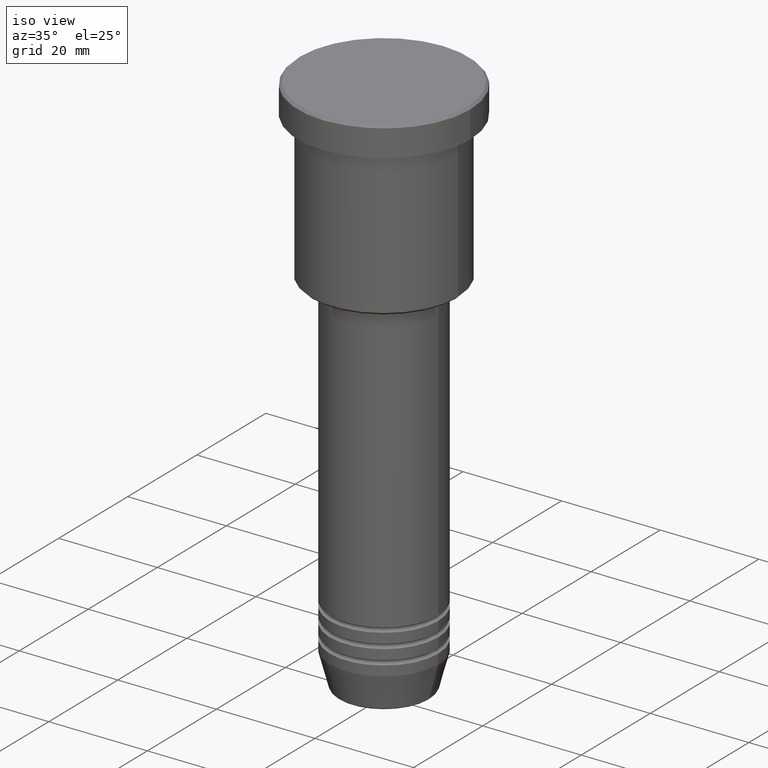
[diagram: clean part render]
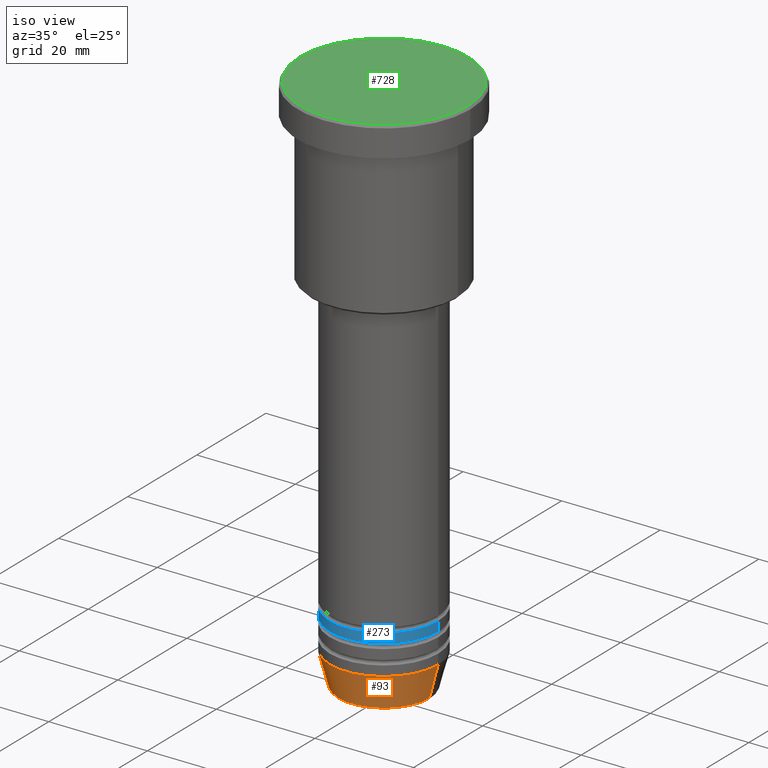
[diagram: same view with three faces highlighted in distinct colors, each labeled with its STEP entity id]
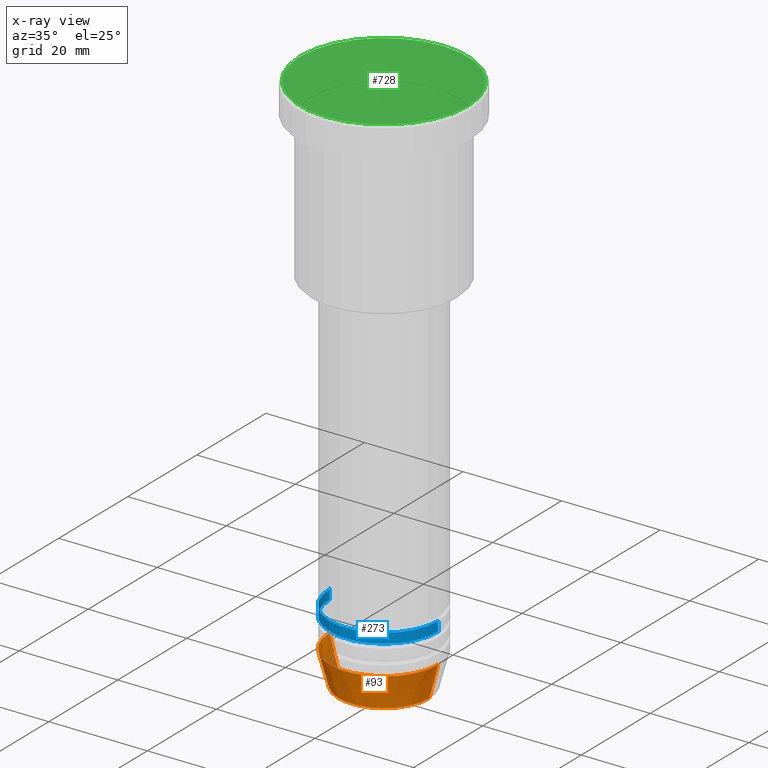
[diagram: x-ray of the same camera — body ghosted, the three highlighted faces saturated]
A machine part, iso view with three faces highlighted in distinct colors.
The next image is the same camera in x-ray (body ghosted, the three faces saturated) — at least one of them is partly hidden behind the body in this view.
Their STEP definitions:

[orange] entity #93 — the highlighted conical surface has half-angle 15 deg.
#7 = VERTEX_POINT ( 'NONE', #494 ) ;
#34 = DIRECTION ( 'NONE',  ( 1.000000000000000000, 0.000000000000000000, 0.000000000000000000 ) ) ;
#72 = CONICAL_SURFACE ( 'NONE', #148, 11.00000000000000000, 0.2617993877991500740 ) ;
#77 = ORIENTED_EDGE ( 'NONE', *, *, #685, .T. ) ;
#93 = ADVANCED_FACE ( 'NONE', ( #491 ), #72, .T. ) ;
#141 = DIRECTION ( 'NONE',  ( 1.000000000000000000, 0.000000000000000000, 0.000000000000000000 ) ) ;
#148 = AXIS2_PLACEMENT_3D ( 'NONE', #861, #1149, #141 ) ;
#184 = DIRECTION ( 'NONE',  ( -0.2588190451025213501, 3.169619151431772337E-17, 0.9659258262890680902 ) ) ;
#221 = VECTOR ( 'NONE', #928, 1000.000000000000000 ) ;
#235 = VERTEX_POINT ( 'NONE', #401 ) ;
#248 = DIRECTION ( 'NONE',  ( -0.000000000000000000, -0.000000000000000000, 1.000000000000000000 ) ) ;
#255 = VERTEX_POINT ( 'NONE', #1108 ) ;
#305 = AXIS2_PLACEMENT_3D ( 'NONE', #1067, #248, #399 ) ;
#380 = CIRCLE ( 'NONE', #305, 11.00000000000000000 ) ;
#399 = DIRECTION ( 'NONE',  ( 1.000000000000000000, 0.000000000000000000, 0.000000000000000000 ) ) ;
#401 = CARTESIAN_POINT ( 'NONE',  ( -9.223655072137191269, 1.238341722557647202E-15, -110.6294095225512564 ) ) ;
#406 = VECTOR ( 'NONE', #184, 1000.000000000000000 ) ;
#469 = LINE ( 'NONE', #1109, #221 ) ;
#491 = FACE_OUTER_BOUND ( 'NONE', #788, .T. ) ;
#494 = CARTESIAN_POINT ( 'NONE',  ( 11.00000000000000000, 0.000000000000000000, -104.0000000000000142 ) ) ;
#517 = EDGE_CURVE ( 'NONE', #235, #255, #1102, .T. ) ;
#531 = CARTESIAN_POINT ( 'NONE',  ( -11.00000000000000000, 1.347111479062088405E-15, -104.0000000000000142 ) ) ;
#601 = VERTEX_POINT ( 'NONE', #650 ) ;
#650 = CARTESIAN_POINT ( 'NONE',  ( 9.223655072137191269, 0.000000000000000000, -110.6294095225512564 ) ) ;
#654 = DIRECTION ( 'NONE',  ( -0.000000000000000000, -0.000000000000000000, 1.000000000000000000 ) ) ;
#685 = EDGE_CURVE ( 'NONE', #235, #601, #1148, .T. ) ;
#781 = AXIS2_PLACEMENT_3D ( 'NONE', #1029, #654, #34 ) ;
#788 = EDGE_LOOP ( 'NONE', ( #996, #77, #1159, #820 ) ) ;
#820 = ORIENTED_EDGE ( 'NONE', *, *, #867, .F. ) ;
#861 = CARTESIAN_POINT ( 'NONE',  ( 0.000000000000000000, 0.000000000000000000, -104.0000000000000142 ) ) ;
#867 = EDGE_CURVE ( 'NONE', #255, #7, #380, .T. ) ;
#928 = DIRECTION ( 'NONE',  ( 0.2588190451025213501, 0.000000000000000000, 0.9659258262890680902 ) ) ;
#996 = ORIENTED_EDGE ( 'NONE', *, *, #517, .F. ) ;
#1029 = CARTESIAN_POINT ( 'NONE',  ( 0.000000000000000000, 0.000000000000000000, -110.6294095225512564 ) ) ;
#1062 = EDGE_CURVE ( 'NONE', #601, #7, #469, .T. ) ;
#1067 = CARTESIAN_POINT ( 'NONE',  ( 0.000000000000000000, 0.000000000000000000, -104.0000000000000142 ) ) ;
#1102 = LINE ( 'NONE', #531, #406 ) ;
#1108 = CARTESIAN_POINT ( 'NONE',  ( -11.00000000000000000, 1.347111479062088405E-15, -104.0000000000000142 ) ) ;
#1109 = CARTESIAN_POINT ( 'NONE',  ( 11.00000000000000000, 0.000000000000000000, -104.0000000000000142 ) ) ;
#1148 = CIRCLE ( 'NONE', #781, 9.223655072137191269 ) ;
#1149 = DIRECTION ( 'NONE',  ( -0.000000000000000000, -0.000000000000000000, 1.000000000000000000 ) ) ;
#1159 = ORIENTED_EDGE ( 'NONE', *, *, #1062, .T. ) ;

[blue] entity #273 — the highlighted cylindrical surface (partial cylindrical patch) has radius 11 mm, axis along (-0, -0, 1).
#51 = CIRCLE ( 'NONE', #74, 11.00000000000000000 ) ;
#64 = LINE ( 'NONE', #138, #943 ) ;
#74 = AXIS2_PLACEMENT_3D ( 'NONE', #265, #1088, #818 ) ;
#115 = CARTESIAN_POINT ( 'NONE',  ( -11.00000000000000000, 1.347111479062088405E-15, -95.99999999999998579 ) ) ;
#137 = ORIENTED_EDGE ( 'NONE', *, *, #528, .T. ) ;
#138 = CARTESIAN_POINT ( 'NONE',  ( -11.00000000000000000, 1.347111479062088405E-15, 0.000000000000000000 ) ) ;
#140 = EDGE_CURVE ( 'NONE', #447, #371, #675, .T. ) ;
#161 = AXIS2_PLACEMENT_3D ( 'NONE', #782, #327, #689 ) ;
#179 = VERTEX_POINT ( 'NONE', #115 ) ;
#181 = CIRCLE ( 'NONE', #161, 11.00000000000000000 ) ;
#183 = ORIENTED_EDGE ( 'NONE', *, *, #140, .T. ) ;
#222 = CYLINDRICAL_SURFACE ( 'NONE', #329, 11.00000000000000000 ) ;
#265 = CARTESIAN_POINT ( 'NONE',  ( 0.000000000000000000, 0.000000000000000000, -97.99999999999997158 ) ) ;
#273 = ADVANCED_FACE ( 'NONE', ( #646 ), #222, .T. ) ;
#322 = CARTESIAN_POINT ( 'NONE',  ( 11.00000000000000000, 0.000000000000000000, 0.000000000000000000 ) ) ;
#327 = DIRECTION ( 'NONE',  ( -0.000000000000000000, -0.000000000000000000, 1.000000000000000000 ) ) ;
#329 = AXIS2_PLACEMENT_3D ( 'NONE', #578, #1019, #949 ) ;
#342 = EDGE_CURVE ( 'NONE', #343, #179, #64, .T. ) ;
#343 = VERTEX_POINT ( 'NONE', #1060 ) ;
#371 = VERTEX_POINT ( 'NONE', #794 ) ;
#447 = VERTEX_POINT ( 'NONE', #1097 ) ;
#528 = EDGE_CURVE ( 'NONE', #343, #447, #51, .T. ) ;
#578 = CARTESIAN_POINT ( 'NONE',  ( 0.000000000000000000, 0.000000000000000000, 0.000000000000000000 ) ) ;
#646 = FACE_OUTER_BOUND ( 'NONE', #912, .T. ) ;
#672 = DIRECTION ( 'NONE',  ( -0.000000000000000000, -0.000000000000000000, 1.000000000000000000 ) ) ;
#675 = LINE ( 'NONE', #322, #765 ) ;
#682 = ORIENTED_EDGE ( 'NONE', *, *, #860, .F. ) ;
#689 = DIRECTION ( 'NONE',  ( 1.000000000000000000, 0.000000000000000000, 0.000000000000000000 ) ) ;
#765 = VECTOR ( 'NONE', #901, 1000.000000000000000 ) ;
#782 = CARTESIAN_POINT ( 'NONE',  ( 0.000000000000000000, 0.000000000000000000, -95.99999999999998579 ) ) ;
#794 = CARTESIAN_POINT ( 'NONE',  ( 11.00000000000000000, 0.000000000000000000, -95.99999999999998579 ) ) ;
#818 = DIRECTION ( 'NONE',  ( 1.000000000000000000, 0.000000000000000000, 0.000000000000000000 ) ) ;
#860 = EDGE_CURVE ( 'NONE', #179, #371, #181, .T. ) ;
#901 = DIRECTION ( 'NONE',  ( -0.000000000000000000, -0.000000000000000000, 1.000000000000000000 ) ) ;
#912 = EDGE_LOOP ( 'NONE', ( #1009, #137, #183, #682 ) ) ;
#943 = VECTOR ( 'NONE', #672, 1000.000000000000000 ) ;
#949 = DIRECTION ( 'NONE',  ( 1.000000000000000000, 0.000000000000000000, 0.000000000000000000 ) ) ;
#1009 = ORIENTED_EDGE ( 'NONE', *, *, #342, .F. ) ;
#1019 = DIRECTION ( 'NONE',  ( -0.000000000000000000, -0.000000000000000000, 1.000000000000000000 ) ) ;
#1060 = CARTESIAN_POINT ( 'NONE',  ( -11.00000000000000000, 1.347111479062088405E-15, -97.99999999999997158 ) ) ;
#1088 = DIRECTION ( 'NONE',  ( -0.000000000000000000, -0.000000000000000000, 1.000000000000000000 ) ) ;
#1097 = CARTESIAN_POINT ( 'NONE',  ( 11.00000000000000000, 0.000000000000000000, -97.99999999999997158 ) ) ;

[green] entity #728 — the highlighted planar face has unit normal (0, -0, 1).
#189 = CARTESIAN_POINT ( 'NONE',  ( 0.000000000000000000, 0.000000000000000000, 0.000000000000000000 ) ) ;
#267 = EDGE_CURVE ( 'NONE', #803, #513, #558, .T. ) ;
#269 = DIRECTION ( 'NONE',  ( -0.000000000000000000, -0.000000000000000000, 1.000000000000000000 ) ) ;
#286 = ORIENTED_EDGE ( 'NONE', *, *, #267, .T. ) ;
#513 = VERTEX_POINT ( 'NONE', #1007 ) ;
#516 = CARTESIAN_POINT ( 'NONE',  ( -16.99999999999997513, 0.000000000000000000, 0.000000000000000000 ) ) ;
#558 = CIRCLE ( 'NONE', #847, 16.99999999999997513 ) ;
#655 = CARTESIAN_POINT ( 'NONE',  ( 0.000000000000000000, 0.000000000000000000, 0.000000000000000000 ) ) ;
#728 = ADVANCED_FACE ( 'NONE', ( #1138 ), #1158, .T. ) ;
#770 = DIRECTION ( 'NONE',  ( 0.000000000000000000, -0.000000000000000000, 1.000000000000000000 ) ) ;
#792 = AXIS2_PLACEMENT_3D ( 'NONE', #189, #269, #904 ) ;
#803 = VERTEX_POINT ( 'NONE', #516 ) ;
#847 = AXIS2_PLACEMENT_3D ( 'NONE', #655, #1043, #924 ) ;
#880 = AXIS2_PLACEMENT_3D ( 'NONE', #1150, #770, #1058 ) ;
#904 = DIRECTION ( 'NONE',  ( 1.000000000000000000, 0.000000000000000000, 0.000000000000000000 ) ) ;
#910 = EDGE_LOOP ( 'NONE', ( #286, #990 ) ) ;
#924 = DIRECTION ( 'NONE',  ( 1.000000000000000000, 0.000000000000000000, 0.000000000000000000 ) ) ;
#956 = EDGE_CURVE ( 'NONE', #513, #803, #965, .T. ) ;
#965 = CIRCLE ( 'NONE', #792, 16.99999999999997513 ) ;
#990 = ORIENTED_EDGE ( 'NONE', *, *, #956, .T. ) ;
#1007 = CARTESIAN_POINT ( 'NONE',  ( 16.99999999999997513, 2.112515728529182883E-15, 0.000000000000000000 ) ) ;
#1043 = DIRECTION ( 'NONE',  ( -0.000000000000000000, -0.000000000000000000, 1.000000000000000000 ) ) ;
#1058 = DIRECTION ( 'NONE',  ( 1.000000000000000000, 0.000000000000000000, 0.000000000000000000 ) ) ;
#1138 = FACE_OUTER_BOUND ( 'NONE', #910, .T. ) ;
#1150 = CARTESIAN_POINT ( 'NONE',  ( 0.000000000000000000, 0.000000000000000000, 0.000000000000000000 ) ) ;
#1158 = PLANE ( 'NONE',  #880 ) ;